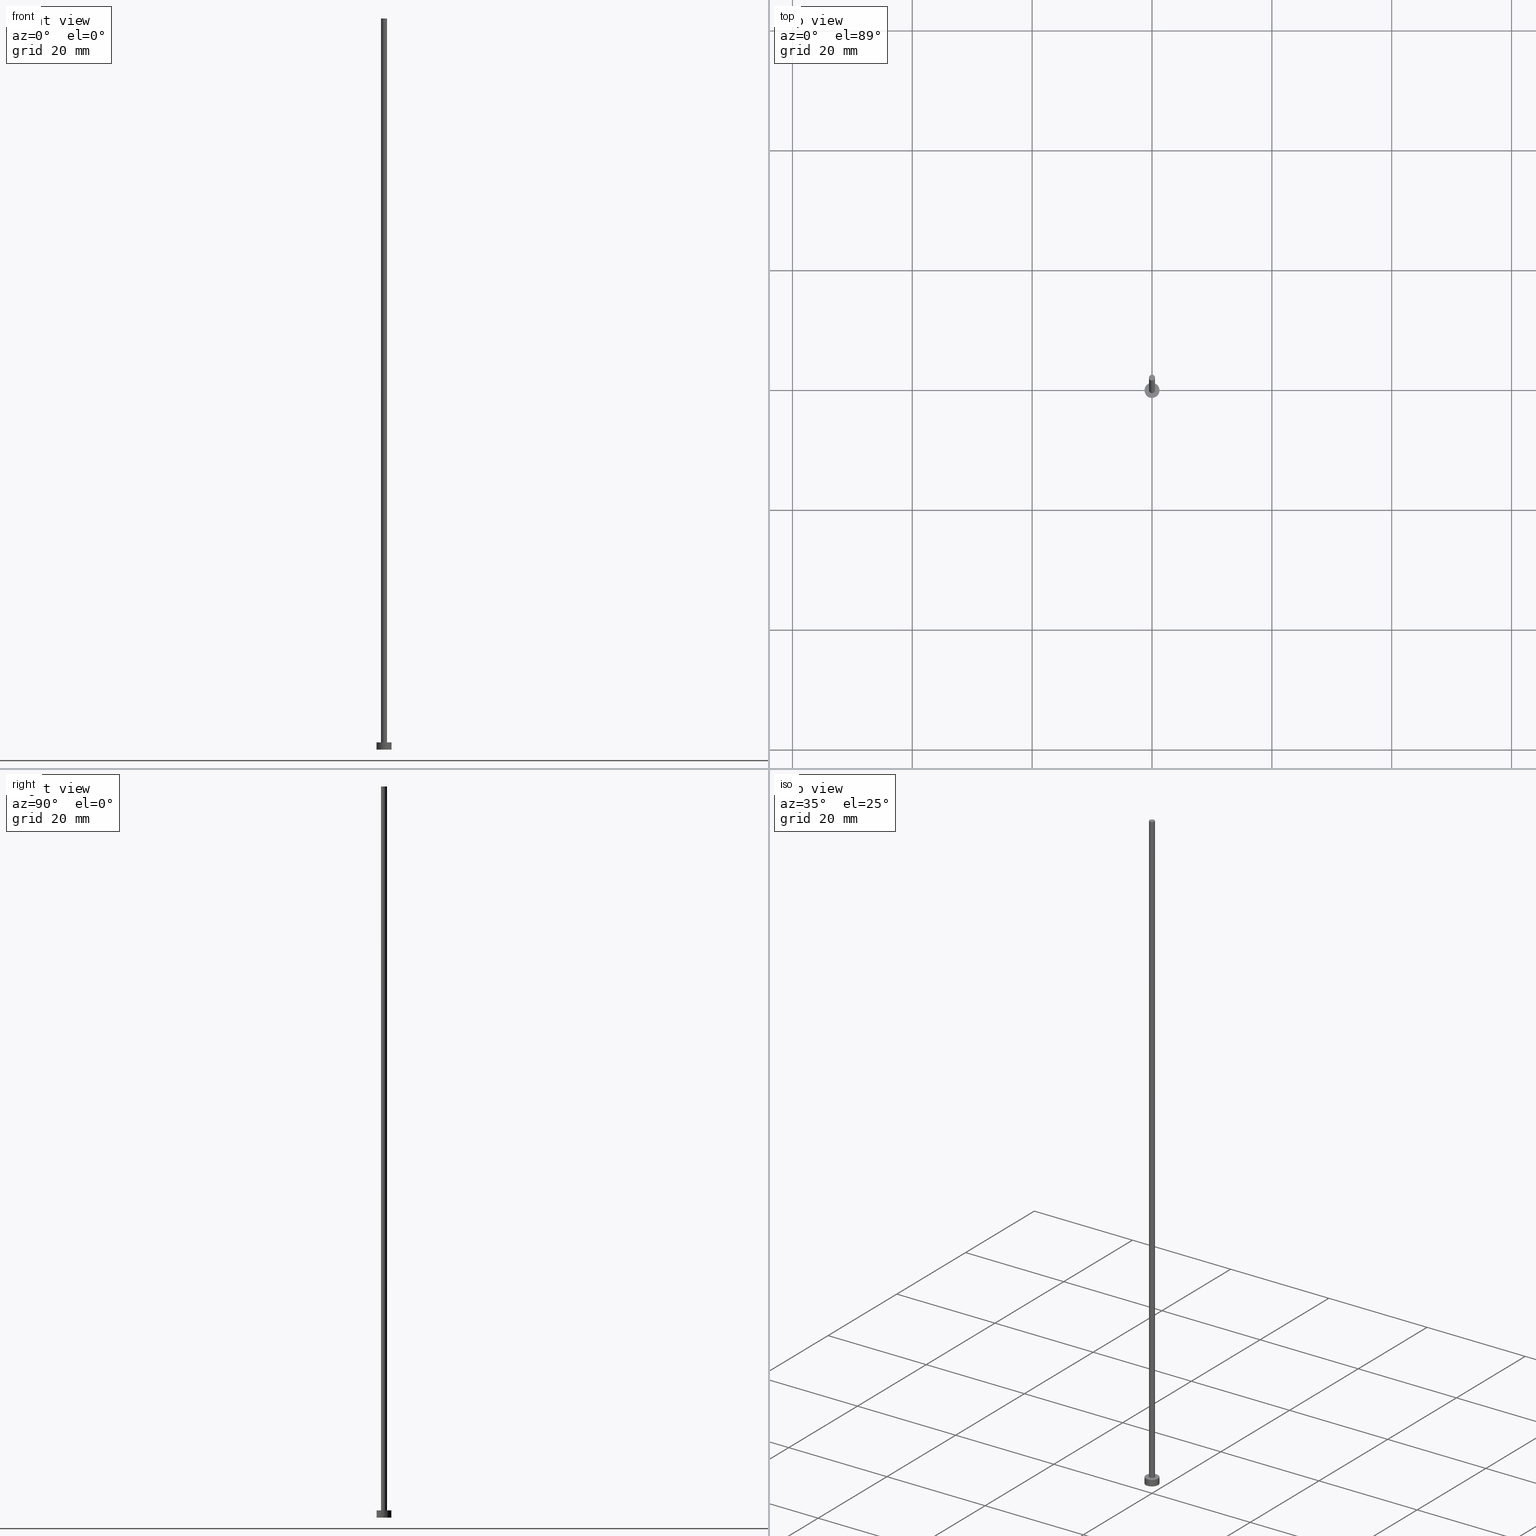
[diagram: canonical four-view strip — front | top / right | iso, engineering-drawing reading convention]
A machine part, canonical four-view strip (front | top / right | iso — engineering-drawing reading convention). The complete STEP part file that produces these views, byte-faithful:
ISO-10303-21;
HEADER;
FILE_DESCRIPTION (( 'STEP AP203' ),
    '1' );
FILE_NAME ('17ef.STEP',
    '2023-03-22T07:45:16',
    ( '' ),
    ( '' ),
    'SwSTEP 2.0',
    'SolidWorks 2019',
    '' );
FILE_SCHEMA (( 'CONFIG_CONTROL_DESIGN' ));
ENDSEC;

DATA;
#1 = ORIENTED_EDGE ( 'NONE', *, *, #76, .F. ) ;
#2 = EDGE_CURVE ( 'NONE', #162, #81, #64, .T. ) ;
#3 = ORIENTED_EDGE ( 'NONE', *, *, #92, .F. ) ;
#4 = ORIENTED_EDGE ( 'NONE', *, *, #2, .T. ) ;
#5 = VERTEX_POINT ( 'NONE', #19 ) ;
#6 = FACE_OUTER_BOUND ( 'NONE', #161, .T. ) ;
#7 = DIRECTION ( 'NONE',  ( 1.000000000000000000, 0.000000000000000000, 0.000000000000000000 ) ) ;
#8 = LOCAL_TIME ( 8, 45, 16.00000000000000000, #233 ) ;
#9 = CARTESIAN_POINT ( 'NONE',  ( 0.000000000000000000, 0.000000000000000000, 122.0000000000000000 ) ) ;
#10 = FACE_OUTER_BOUND ( 'NONE', #121, .T. ) ;
#11 = FACE_OUTER_BOUND ( 'NONE', #63, .T. ) ;
#12 = CC_DESIGN_DATE_AND_TIME_ASSIGNMENT ( #56, #155, ( #253 ) ) ;
#13 = CALENDAR_DATE ( 2023, 22, 3 ) ;
#14 = DIRECTION ( 'NONE',  ( 0.000000000000000000, 0.000000000000000000, 1.000000000000000000 ) ) ;
#15 = APPROVAL ( #36, 'NEUR�EN�' ) ;
#16 = AXIS2_PLACEMENT_3D ( 'NONE', #43, #65, #244 ) ;
#17 = DIRECTION ( 'NONE',  ( 1.000000000000000000, 0.000000000000000000, 0.000000000000000000 ) ) ;
#18 = APPLICATION_CONTEXT ( 'configuration controlled 3d designs of mechanical parts and assemblies' ) ;
#19 = CARTESIAN_POINT ( 'NONE',  ( -0.5000000000000000000, 0.000000000000000000, 122.0000000000000000 ) ) ;
#20 = ADVANCED_FACE ( 'NONE', ( #11 ), #167, .T. ) ;
#21 = ORIENTED_EDGE ( 'NONE', *, *, #122, .F. ) ;
#22 = ORIENTED_EDGE ( 'NONE', *, *, #92, .T. ) ;
#23 = AXIS2_PLACEMENT_3D ( 'NONE', #9, #88, #25 ) ;
#24 = DIRECTION ( 'NONE',  ( 1.000000000000000000, 0.000000000000000000, -0.000000000000000000 ) ) ;
#25 = DIRECTION ( 'NONE',  ( 1.000000000000000000, 0.000000000000000000, 0.000000000000000000 ) ) ;
#26 = ADVANCED_FACE ( 'NONE', ( #85 ), #217, .T. ) ;
#27 = CIRCLE ( 'NONE', #109, 0.5000000000000000000 ) ;
#28 = DIRECTION ( 'NONE',  ( -0.000000000000000000, -0.000000000000000000, -1.000000000000000000 ) ) ;
#29 = ORGANIZATION ( 'NEUR�EN�', 'NEUR�EN�', '' ) ;
#30 = LINE ( 'NONE', #185, #216 ) ;
#31 = DIRECTION ( 'NONE',  ( -0.000000000000000000, -0.000000000000000000, -1.000000000000000000 ) ) ;
#32 = CARTESIAN_POINT ( 'NONE',  ( 0.000000000000000000, 0.000000000000000000, 1.199999999999999956 ) ) ;
#33 = PERSON_AND_ORGANIZATION_ROLE ( 'design_supplier' ) ;
#34 = EDGE_CURVE ( 'NONE', #79, #254, #27, .T. ) ;
#35 = DIRECTION ( 'NONE',  ( 1.000000000000000000, 0.000000000000000000, 0.000000000000000000 ) ) ;
#36 = APPROVAL_STATUS ( 'not_yet_approved' ) ;
#37 = AXIS2_PLACEMENT_3D ( 'NONE', #32, #133, #35 ) ;
#38 = APPROVAL_STATUS ( 'not_yet_approved' ) ;
#39 = ADVANCED_FACE ( 'NONE', ( #47 ), #69, .T. ) ;
#40 = LOCAL_TIME ( 8, 45, 16.00000000000000000, #174 ) ;
#41 = EDGE_LOOP ( 'NONE', ( #181, #97 ) ) ;
#42 = EDGE_LOOP ( 'NONE', ( #239, #212, #209, #99 ) ) ;
#43 = CARTESIAN_POINT ( 'NONE',  ( 0.000000000000000000, 0.000000000000000000, 1.199999999999999956 ) ) ;
#44 = AXIS2_PLACEMENT_3D ( 'NONE', #90, #203, #54 ) ;
#45 = DIRECTION ( 'NONE',  ( 0.000000000000000000, 0.000000000000000000, 1.000000000000000000 ) ) ;
#46 = CARTESIAN_POINT ( 'NONE',  ( 0.000000000000000000, 0.000000000000000000, 0.000000000000000000 ) ) ;
#47 = FACE_OUTER_BOUND ( 'NONE', #42, .T. ) ;
#48 = AXIS2_PLACEMENT_3D ( 'NONE', #46, #194, #125 ) ;
#49 = DIRECTION ( 'NONE',  ( 0.000000000000000000, 0.000000000000000000, 1.000000000000000000 ) ) ;
#50 = ADVANCED_FACE ( 'NONE', ( #10 ), #147, .T. ) ;
#51 = DATE_AND_TIME ( #201, #40 ) ;
#52 = EDGE_CURVE ( 'NONE', #254, #79, #126, .T. ) ;
#53 = APPLICATION_PROTOCOL_DEFINITION ( 'international standard', 'config_control_design', 1994, #57 ) ;
#54 = DIRECTION ( 'NONE',  ( -1.000000000000000000, 0.000000000000000000, 0.000000000000000000 ) ) ;
#55 = PERSON_AND_ORGANIZATION ( #115, #29 ) ;
#56 = DATE_AND_TIME ( #252, #8 ) ;
#57 = APPLICATION_CONTEXT ( 'configuration controlled 3d designs of mechanical parts and assemblies' ) ;
#58 = APPROVAL ( #228, 'NEUR�EN�' ) ;
#59 = ORIENTED_EDGE ( 'NONE', *, *, #101, .T. ) ;
#60 = ORIENTED_EDGE ( 'NONE', *, *, #52, .F. ) ;
#61 = EDGE_CURVE ( 'NONE', #157, #254, #30, .T. ) ;
#62 = ORIENTED_EDGE ( 'NONE', *, *, #34, .T. ) ;
#63 = EDGE_LOOP ( 'NONE', ( #95, #21, #4, #140 ) ) ;
#64 = LINE ( 'NONE', #117, #211 ) ;
#65 = DIRECTION ( 'NONE',  ( -0.000000000000000000, -0.000000000000000000, -1.000000000000000000 ) ) ;
#66 = CARTESIAN_POINT ( 'NONE',  ( 1.250000000000000000, 1.530808498934191571E-16, 1.199999999999999956 ) ) ;
#67 = CARTESIAN_POINT ( 'NONE',  ( 0.000000000000000000, 0.000000000000000000, 122.0000000000000000 ) ) ;
#68 = CIRCLE ( 'NONE', #176, 0.5000000000000000000 ) ;
#69 = CYLINDRICAL_SURFACE ( 'NONE', #16, 1.250000000000000000 ) ;
#70 = CC_DESIGN_APPROVAL ( #210, ( #253 ) ) ;
#71 = PERSON_AND_ORGANIZATION ( #115, #29 ) ;
#72 = DATE_TIME_ROLE ( 'creation_date' ) ;
#73 = CLOSED_SHELL ( 'NONE', ( #247, #39, #20, #156, #218, #26, #50 ) ) ;
#74 = APPROVAL_DATE_TIME ( #248, #58 ) ;
#75 = CYLINDRICAL_SURFACE ( 'NONE', #44, 0.5000000000000000000 ) ;
#76 = EDGE_CURVE ( 'NONE', #157, #5, #68, .T. ) ;
#77 = SECURITY_CLASSIFICATION_LEVEL ( 'unclassified' ) ;
#78 = ORIENTED_EDGE ( 'NONE', *, *, #101, .F. ) ;
#79 = VERTEX_POINT ( 'NONE', #143 ) ;
#80 = LOCAL_TIME ( 8, 45, 16.00000000000000000, #93 ) ;
#81 = VERTEX_POINT ( 'NONE', #242 ) ;
#82 = PLANE ( 'NONE',  #48 ) ;
#83 = DIRECTION ( 'NONE',  ( 0.000000000000000000, 0.000000000000000000, 1.000000000000000000 ) ) ;
#84 = CIRCLE ( 'NONE', #219, 1.250000000000000000 ) ;
#85 = FACE_OUTER_BOUND ( 'NONE', #237, .T. ) ;
#86 = DATE_AND_TIME ( #164, #180 ) ;
#87 = CC_DESIGN_PERSON_AND_ORGANIZATION_ASSIGNMENT ( #116, #208, ( #253 ) ) ;
#88 = DIRECTION ( 'NONE',  ( 0.000000000000000000, 0.000000000000000000, 1.000000000000000000 ) ) ;
#89 = DIRECTION ( 'NONE',  ( 1.000000000000000000, 0.000000000000000000, 0.000000000000000000 ) ) ;
#90 = CARTESIAN_POINT ( 'NONE',  ( 0.000000000000000000, 0.000000000000000000, 122.0000000000000000 ) ) ;
#91 = LINE ( 'NONE', #190, #250 ) ;
#92 = EDGE_CURVE ( 'NONE', #5, #79, #225, .T. ) ;
#93 = COORDINATED_UNIVERSAL_TIME_OFFSET ( 1, 0, .AHEAD. ) ;
#94 = COORDINATED_UNIVERSAL_TIME_OFFSET ( 1, 0, .AHEAD. ) ;
#95 = ORIENTED_EDGE ( 'NONE', *, *, #238, .F. ) ;
#96 = CIRCLE ( 'NONE', #23, 0.5000000000000000000 ) ;
#97 = ORIENTED_EDGE ( 'NONE', *, *, #227, .T. ) ;
#98 = ORIENTED_EDGE ( 'NONE', *, *, #76, .T. ) ;
#99 = ORIENTED_EDGE ( 'NONE', *, *, #2, .F. ) ;
#100 = ORIENTED_EDGE ( 'NONE', *, *, #34, .F. ) ;
#101 = EDGE_CURVE ( 'NONE', #5, #157, #96, .T. ) ;
#102 = DIRECTION ( 'NONE',  ( 1.000000000000000000, 0.000000000000000000, 0.000000000000000000 ) ) ;
#103 = CARTESIAN_POINT ( 'NONE',  ( 0.000000000000000000, 0.000000000000000000, 0.000000000000000000 ) ) ;
#104 = DIRECTION ( 'NONE',  ( 0.000000000000000000, 0.000000000000000000, 1.000000000000000000 ) ) ;
#105 = PRODUCT_DEFINITION ( 'NEZN�M�', '', #114, #172 ) ;
#106 = APPROVAL_PERSON_ORGANIZATION ( #138, #210, #191 ) ;
#107 = CARTESIAN_POINT ( 'NONE',  ( 0.000000000000000000, 0.000000000000000000, 122.0000000000000000 ) ) ;
#108 = CARTESIAN_POINT ( 'NONE',  ( 0.000000000000000000, 0.000000000000000000, 0.000000000000000000 ) ) ;
#109 = AXIS2_PLACEMENT_3D ( 'NONE', #145, #128, #7 ) ;
#110 =( NAMED_UNIT ( * ) PLANE_ANGLE_UNIT ( ) SI_UNIT ( $, .RADIAN. ) );
#111 = CIRCLE ( 'NONE', #37, 1.250000000000000000 ) ;
#112 = CARTESIAN_POINT ( 'NONE',  ( 0.5000000000000000000, 6.123233995736766036E-17, 1.199999999999999956 ) ) ;
#113 = EDGE_CURVE ( 'NONE', #215, #81, #232, .T. ) ;
#114 = PRODUCT_DEFINITION_FORMATION_WITH_SPECIFIED_SOURCE ( 'LIBOVOLN�', '', #207, .NOT_KNOWN. ) ;
#115 = PERSON ( 'NEUR�EN�', 'NEUR�EN�', 'NEUR�EN�', ('NEUR�EN�'), ('NEUR�EN�'), ('NEUR�EN�') ) ;
#116 = PERSON_AND_ORGANIZATION ( #115, #29 ) ;
#117 = CARTESIAN_POINT ( 'NONE',  ( -1.250000000000000000, 0.000000000000000000, 1.199999999999999956 ) ) ;
#118 = LOCAL_TIME ( 8, 45, 16.00000000000000000, #173 ) ;
#119 = EDGE_LOOP ( 'NONE', ( #1, #158, #120, #3 ) ) ;
#120 = ORIENTED_EDGE ( 'NONE', *, *, #52, .T. ) ;
#121 = EDGE_LOOP ( 'NONE', ( #59, #98 ) ) ;
#122 = EDGE_CURVE ( 'NONE', #162, #139, #148, .T. ) ;
#123 = CARTESIAN_POINT ( 'NONE',  ( 0.5000000000000000000, 6.123233995736766036E-17, 122.0000000000000000 ) ) ;
#124 = DIRECTION ( 'NONE',  ( 0.000000000000000000, 0.000000000000000000, 1.000000000000000000 ) ) ;
#125 = DIRECTION ( 'NONE',  ( 1.000000000000000000, 0.000000000000000000, -0.000000000000000000 ) ) ;
#126 = CIRCLE ( 'NONE', #179, 0.5000000000000000000 ) ;
#127 = DIRECTION ( 'NONE',  ( 1.000000000000000000, 0.000000000000000000, -0.000000000000000000 ) ) ;
#128 = DIRECTION ( 'NONE',  ( 0.000000000000000000, 0.000000000000000000, 1.000000000000000000 ) ) ;
#129 = PRODUCT_DEFINITION_SHAPE ( 'NONE', 'NONE',  #105 ) ;
#130 = PERSON_AND_ORGANIZATION_ROLE ( 'creator' ) ;
#131 = PERSON_AND_ORGANIZATION ( #115, #29 ) ;
#132 = APPROVAL_PERSON_ORGANIZATION ( #154, #15, #231 ) ;
#133 = DIRECTION ( 'NONE',  ( 0.000000000000000000, 0.000000000000000000, 1.000000000000000000 ) ) ;
#134 =( LENGTH_UNIT ( ) NAMED_UNIT ( * ) SI_UNIT ( .MILLI., .METRE. ) );
#135 = APPLICATION_PROTOCOL_DEFINITION ( 'international standard', 'config_control_design', 1994, #18 ) ;
#136 = AXIS2_PLACEMENT_3D ( 'NONE', #243, #240, #168 ) ;
#137 = MANIFOLD_SOLID_BREP ( 'P�idat vysunut�m3', #73 ) ;
#138 = PERSON_AND_ORGANIZATION ( #115, #29 ) ;
#139 = VERTEX_POINT ( 'NONE', #66 ) ;
#140 = ORIENTED_EDGE ( 'NONE', *, *, #198, .T. ) ;
#141 = CARTESIAN_POINT ( 'NONE',  ( 0.000000000000000000, 0.000000000000000000, 1.199999999999999956 ) ) ;
#142 = CC_DESIGN_APPROVAL ( #15, ( #114 ) ) ;
#143 = CARTESIAN_POINT ( 'NONE',  ( -0.5000000000000000000, 0.000000000000000000, 1.199999999999999956 ) ) ;
#144 = FACE_BOUND ( 'NONE', #234, .T. ) ;
#145 = CARTESIAN_POINT ( 'NONE',  ( 0.000000000000000000, 0.000000000000000000, 1.199999999999999956 ) ) ;
#146 = UNCERTAINTY_MEASURE_WITH_UNIT (LENGTH_MEASURE( 1.000000000000000082E-05 ), #134, 'distance_accuracy_value', 'NONE');
#147 = PLANE ( 'NONE',  #169 ) ;
#148 = CIRCLE ( 'NONE', #160, 1.250000000000000000 ) ;
#149 = APPROVAL_DATE_TIME ( #86, #210 ) ;
#150 = CARTESIAN_POINT ( 'NONE',  ( 0.000000000000000000, 0.000000000000000000, 0.000000000000000000 ) ) ;
#151 = FACE_OUTER_BOUND ( 'NONE', #119, .T. ) ;
#152 = CC_DESIGN_PERSON_AND_ORGANIZATION_ASSIGNMENT ( #204, #171, ( #207 ) ) ;
#153 = PERSON_AND_ORGANIZATION_ROLE ( 'creator' ) ;
#154 = PERSON_AND_ORGANIZATION ( #115, #29 ) ;
#155 = DATE_TIME_ROLE ( 'classification_date' ) ;
#156 = ADVANCED_FACE ( 'NONE', ( #144, #170 ), #245, .T. ) ;
#157 = VERTEX_POINT ( 'NONE', #123 ) ;
#158 = ORIENTED_EDGE ( 'NONE', *, *, #61, .T. ) ;
#159 = ADVANCED_BREP_SHAPE_REPRESENTATION ( '17ef', ( #137, #255 ), #196 ) ;
#160 = AXIS2_PLACEMENT_3D ( 'NONE', #187, #45, #89 ) ;
#161 = EDGE_LOOP ( 'NONE', ( #178, #214 ) ) ;
#162 = VERTEX_POINT ( 'NONE', #193 ) ;
#163 = DIRECTION ( 'NONE',  ( 1.000000000000000000, 0.000000000000000000, 0.000000000000000000 ) ) ;
#164 = CALENDAR_DATE ( 2023, 22, 3 ) ;
#165 = DIRECTION ( 'NONE',  ( -1.000000000000000000, 0.000000000000000000, 0.000000000000000000 ) ) ;
#166 = CC_DESIGN_PERSON_AND_ORGANIZATION_ASSIGNMENT ( #55, #130, ( #114 ) ) ;
#167 = CYLINDRICAL_SURFACE ( 'NONE', #136, 1.250000000000000000 ) ;
#168 = DIRECTION ( 'NONE',  ( -1.000000000000000000, 0.000000000000000000, 0.000000000000000000 ) ) ;
#169 = AXIS2_PLACEMENT_3D ( 'NONE', #67, #104, #127 ) ;
#170 = FACE_OUTER_BOUND ( 'NONE', #41, .T. ) ;
#171 = PERSON_AND_ORGANIZATION_ROLE ( 'design_owner' ) ;
#172 = DESIGN_CONTEXT ( 'detailed design', #18, 'design' ) ;
#173 = COORDINATED_UNIVERSAL_TIME_OFFSET ( 1, 0, .AHEAD. ) ;
#174 = COORDINATED_UNIVERSAL_TIME_OFFSET ( 1, 0, .AHEAD. ) ;
#175 = PRODUCT_RELATED_PRODUCT_CATEGORY ( 'detail', '', ( #207 ) ) ;
#176 = AXIS2_PLACEMENT_3D ( 'NONE', #199, #83, #163 ) ;
#177 = CC_DESIGN_PERSON_AND_ORGANIZATION_ASSIGNMENT ( #131, #153, ( #105 ) ) ;
#178 = ORIENTED_EDGE ( 'NONE', *, *, #198, .F. ) ;
#179 = AXIS2_PLACEMENT_3D ( 'NONE', #195, #222, #197 ) ;
#180 = LOCAL_TIME ( 8, 45, 16.00000000000000000, #94 ) ;
#181 = ORIENTED_EDGE ( 'NONE', *, *, #122, .T. ) ;
#182 = DIRECTION ( 'NONE',  ( 1.000000000000000000, 0.000000000000000000, 0.000000000000000000 ) ) ;
#183 = DIRECTION ( 'NONE',  ( 0.000000000000000000, 0.000000000000000000, 1.000000000000000000 ) ) ;
#184 = AXIS2_PLACEMENT_3D ( 'NONE', #108, #49, #102 ) ;
#185 = CARTESIAN_POINT ( 'NONE',  ( 0.5000000000000000000, 6.123233995736766036E-17, 122.0000000000000000 ) ) ;
#186 = CARTESIAN_POINT ( 'NONE',  ( -0.5000000000000000000, 0.000000000000000000, 122.0000000000000000 ) ) ;
#187 = CARTESIAN_POINT ( 'NONE',  ( 0.000000000000000000, 0.000000000000000000, 1.199999999999999956 ) ) ;
#188 = PERSON_AND_ORGANIZATION ( #115, #29 ) ;
#189 = MECHANICAL_CONTEXT ( 'NONE', #57, 'mechanical' ) ;
#190 = CARTESIAN_POINT ( 'NONE',  ( 1.250000000000000000, 1.530808498934191571E-16, 1.199999999999999956 ) ) ;
#191 = APPROVAL_ROLE ( '' ) ;
#192 = DIRECTION ( 'NONE',  ( -0.000000000000000000, -0.000000000000000000, -1.000000000000000000 ) ) ;
#193 = CARTESIAN_POINT ( 'NONE',  ( -1.250000000000000000, 0.000000000000000000, 1.199999999999999956 ) ) ;
#194 = DIRECTION ( 'NONE',  ( 0.000000000000000000, 0.000000000000000000, 1.000000000000000000 ) ) ;
#195 = CARTESIAN_POINT ( 'NONE',  ( 0.000000000000000000, 0.000000000000000000, 1.199999999999999956 ) ) ;
#196 =( GEOMETRIC_REPRESENTATION_CONTEXT ( 3 ) GLOBAL_UNCERTAINTY_ASSIGNED_CONTEXT ( ( #146 ) ) GLOBAL_UNIT_ASSIGNED_CONTEXT ( ( #134, #110, #200 ) ) REPRESENTATION_CONTEXT ( 'NONE', 'WORKASPACE' ) );
#197 = DIRECTION ( 'NONE',  ( 1.000000000000000000, 0.000000000000000000, 0.000000000000000000 ) ) ;
#198 = EDGE_CURVE ( 'NONE', #81, #215, #84, .T. ) ;
#199 = CARTESIAN_POINT ( 'NONE',  ( 0.000000000000000000, 0.000000000000000000, 122.0000000000000000 ) ) ;
#200 =( NAMED_UNIT ( * ) SI_UNIT ( $, .STERADIAN. ) SOLID_ANGLE_UNIT ( ) );
#201 = CALENDAR_DATE ( 2023, 22, 3 ) ;
#202 = CC_DESIGN_PERSON_AND_ORGANIZATION_ASSIGNMENT ( #71, #33, ( #114 ) ) ;
#203 = DIRECTION ( 'NONE',  ( -0.000000000000000000, -0.000000000000000000, -1.000000000000000000 ) ) ;
#204 = PERSON_AND_ORGANIZATION ( #115, #29 ) ;
#205 = VECTOR ( 'NONE', #220, 1000.000000000000000 ) ;
#206 = CC_DESIGN_SECURITY_CLASSIFICATION ( #253, ( #114 ) ) ;
#207 = PRODUCT ( '17ef', '17ef', '', ( #189 ) ) ;
#208 = PERSON_AND_ORGANIZATION_ROLE ( 'classification_officer' ) ;
#209 = ORIENTED_EDGE ( 'NONE', *, *, #113, .T. ) ;
#210 = APPROVAL ( #38, 'NEUR�EN�' ) ;
#211 = VECTOR ( 'NONE', #192, 1000.000000000000000 ) ;
#212 = ORIENTED_EDGE ( 'NONE', *, *, #238, .T. ) ;
#213 = CC_DESIGN_APPROVAL ( #58, ( #105 ) ) ;
#214 = ORIENTED_EDGE ( 'NONE', *, *, #113, .F. ) ;
#215 = VERTEX_POINT ( 'NONE', #221 ) ;
#216 = VECTOR ( 'NONE', #31, 1000.000000000000000 ) ;
#217 = CYLINDRICAL_SURFACE ( 'NONE', #235, 0.5000000000000000000 ) ;
#218 = ADVANCED_FACE ( 'NONE', ( #6 ), #82, .F. ) ;
#219 = AXIS2_PLACEMENT_3D ( 'NONE', #103, #183, #182 ) ;
#220 = DIRECTION ( 'NONE',  ( -0.000000000000000000, -0.000000000000000000, -1.000000000000000000 ) ) ;
#221 = CARTESIAN_POINT ( 'NONE',  ( 1.250000000000000000, 1.530808498934191571E-16, 0.000000000000000000 ) ) ;
#222 = DIRECTION ( 'NONE',  ( 0.000000000000000000, 0.000000000000000000, 1.000000000000000000 ) ) ;
#223 = SHAPE_DEFINITION_REPRESENTATION ( #129, #159 ) ;
#224 = APPROVAL_PERSON_ORGANIZATION ( #188, #58, #249 ) ;
#225 = LINE ( 'NONE', #186, #205 ) ;
#226 = DATE_AND_TIME ( #229, #80 ) ;
#227 = EDGE_CURVE ( 'NONE', #139, #162, #111, .T. ) ;
#228 = APPROVAL_STATUS ( 'not_yet_approved' ) ;
#229 = CALENDAR_DATE ( 2023, 22, 3 ) ;
#230 = CC_DESIGN_DATE_AND_TIME_ASSIGNMENT ( #226, #72, ( #105 ) ) ;
#231 = APPROVAL_ROLE ( '' ) ;
#232 = CIRCLE ( 'NONE', #184, 1.250000000000000000 ) ;
#233 = COORDINATED_UNIVERSAL_TIME_OFFSET ( 1, 0, .AHEAD. ) ;
#234 = EDGE_LOOP ( 'NONE', ( #100, #60 ) ) ;
#235 = AXIS2_PLACEMENT_3D ( 'NONE', #107, #28, #165 ) ;
#236 = ORIENTED_EDGE ( 'NONE', *, *, #61, .F. ) ;
#237 = EDGE_LOOP ( 'NONE', ( #236, #78, #22, #62 ) ) ;
#238 = EDGE_CURVE ( 'NONE', #139, #215, #91, .T. ) ;
#239 = ORIENTED_EDGE ( 'NONE', *, *, #227, .F. ) ;
#240 = DIRECTION ( 'NONE',  ( -0.000000000000000000, -0.000000000000000000, -1.000000000000000000 ) ) ;
#241 = AXIS2_PLACEMENT_3D ( 'NONE', #141, #124, #24 ) ;
#242 = CARTESIAN_POINT ( 'NONE',  ( -1.250000000000000000, 0.000000000000000000, 0.000000000000000000 ) ) ;
#243 = CARTESIAN_POINT ( 'NONE',  ( 0.000000000000000000, 0.000000000000000000, 1.199999999999999956 ) ) ;
#244 = DIRECTION ( 'NONE',  ( -1.000000000000000000, 0.000000000000000000, 0.000000000000000000 ) ) ;
#245 = PLANE ( 'NONE',  #241 ) ;
#246 = APPROVAL_DATE_TIME ( #51, #15 ) ;
#247 = ADVANCED_FACE ( 'NONE', ( #151 ), #75, .T. ) ;
#248 = DATE_AND_TIME ( #13, #118 ) ;
#249 = APPROVAL_ROLE ( '' ) ;
#250 = VECTOR ( 'NONE', #251, 1000.000000000000000 ) ;
#251 = DIRECTION ( 'NONE',  ( -0.000000000000000000, -0.000000000000000000, -1.000000000000000000 ) ) ;
#252 = CALENDAR_DATE ( 2023, 22, 3 ) ;
#253 = SECURITY_CLASSIFICATION ( '', '', #77 ) ;
#254 = VERTEX_POINT ( 'NONE', #112 ) ;
#255 = AXIS2_PLACEMENT_3D ( 'NONE', #150, #14, #17 ) ;
ENDSEC;
END-ISO-10303-21;
